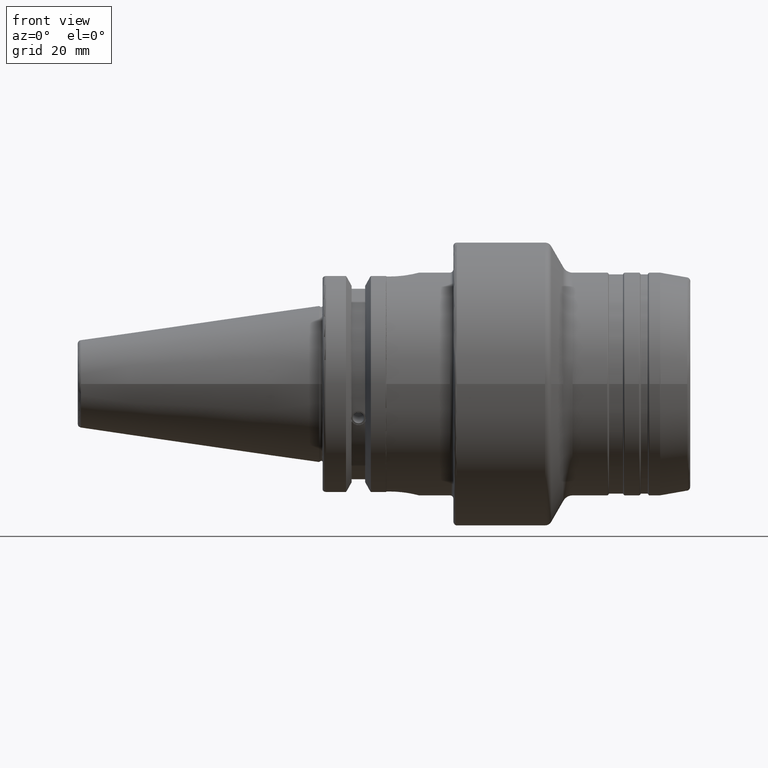
[diagram: clean part render]
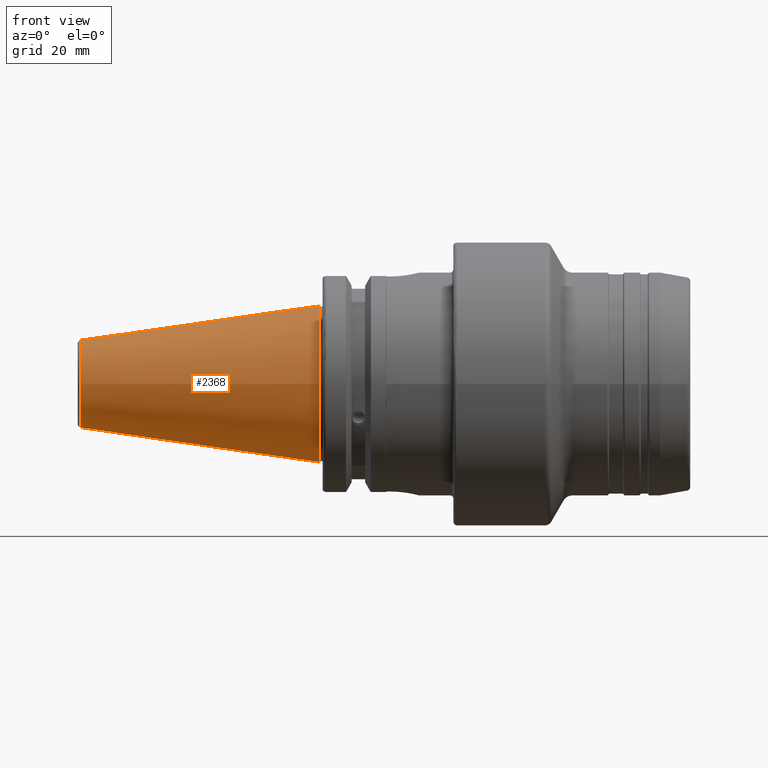
[diagram: same view with one face highlighted and labeled with its STEP entity id]
A machine part, front view. The second image highlights one B-rep face of the part: STEP entity #2368.
In plain terms, the highlighted conical surface has half-angle 8.297 deg.
Its self-contained STEP definition (entity closure, byte-faithful):
#283=FACE_OUTER_BOUND('',#414,.T.);
#414=EDGE_LOOP('',(#2078,#2079,#2080,#2081,#2082,#2083,#2084));
#537=LINE('',#4548,#646);
#646=VECTOR('',#3413,17.2484375);
#831=CIRCLE('',#2689,12.3966635780937);
#832=CIRCLE('',#2690,12.3966635780937);
#836=CIRCLE('',#2694,12.3966635780937);
#839=CIRCLE('',#2699,22.225);
#840=CIRCLE('',#2700,22.225);
#1098=VERTEX_POINT('',#4527);
#1099=VERTEX_POINT('',#4528);
#1100=VERTEX_POINT('',#4530);
#1105=VERTEX_POINT('',#4544);
#1106=VERTEX_POINT('',#4545);
#1447=EDGE_CURVE('',#1098,#1099,#831,.T.);
#1448=EDGE_CURVE('',#1099,#1100,#832,.T.);
#1452=EDGE_CURVE('',#1100,#1098,#836,.T.);
#1455=EDGE_CURVE('',#1105,#1106,#839,.T.);
#1456=EDGE_CURVE('',#1106,#1105,#840,.T.);
#1457=EDGE_CURVE('',#1106,#1099,#537,.T.);
#2078=ORIENTED_EDGE('',*,*,#1455,.F.);
#2079=ORIENTED_EDGE('',*,*,#1456,.F.);
#2080=ORIENTED_EDGE('',*,*,#1457,.T.);
#2081=ORIENTED_EDGE('',*,*,#1447,.F.);
#2082=ORIENTED_EDGE('',*,*,#1452,.F.);
#2083=ORIENTED_EDGE('',*,*,#1448,.F.);
#2084=ORIENTED_EDGE('',*,*,#1457,.F.);
#2273=CONICAL_SURFACE('',#2698,17.2484375,0.144812498238939);
#2368=ADVANCED_FACE('',(#283),#2273,.T.);
#2689=AXIS2_PLACEMENT_3D('',#4529,#3389,#3390);
#2690=AXIS2_PLACEMENT_3D('',#4531,#3391,#3392);
#2694=AXIS2_PLACEMENT_3D('',#4537,#3399,#3400);
#2698=AXIS2_PLACEMENT_3D('',#4543,#3407,#3408);
#2699=AXIS2_PLACEMENT_3D('',#4546,#3409,#3410);
#2700=AXIS2_PLACEMENT_3D('',#4547,#3411,#3412);
#3389=DIRECTION('center_axis',(-1.,0.,0.));
#3390=DIRECTION('ref_axis',(0.,-1.,3.06161699786838E-17));
#3391=DIRECTION('center_axis',(-1.,0.,0.));
#3392=DIRECTION('ref_axis',(0.,-1.,3.06161699786838E-17));
#3399=DIRECTION('center_axis',(-1.,0.,0.));
#3400=DIRECTION('ref_axis',(0.,-1.,3.06161699786838E-17));
#3407=DIRECTION('center_axis',(1.,0.,0.));
#3408=DIRECTION('ref_axis',(0.,1.,0.));
#3409=DIRECTION('center_axis',(1.,0.,0.));
#3410=DIRECTION('ref_axis',(0.,0.,-1.));
#3411=DIRECTION('center_axis',(1.,0.,0.));
#3412=DIRECTION('ref_axis',(0.,0.,-1.));
#3413=DIRECTION('',(-0.989532981063282,0.144306893071729,1.76724974695192E-17));
#4527=CARTESIAN_POINT('',(-67.3943068930717,12.3966635780937,-3.79538359275475E-15));
#4528=CARTESIAN_POINT('',(-67.3943068930718,-12.3966635780937,-1.5181534371019E-15));
#4529=CARTESIAN_POINT('Origin',(-67.3943068930717,0.,-1.89769179637738E-15));
#4530=CARTESIAN_POINT('',(-67.3943068930717,-1.5181534371019E-15,12.3966635780937));
#4531=CARTESIAN_POINT('Origin',(-67.3943068930717,0.,-1.89769179637738E-15));
#4537=CARTESIAN_POINT('Origin',(-67.3943068930717,0.,-1.89769179637738E-15));
#4543=CARTESIAN_POINT('Origin',(-34.125,0.,0.));
#4544=CARTESIAN_POINT('',(0.,22.225,0.));
#4545=CARTESIAN_POINT('',(0.,-22.225,-2.72177751110499E-15));
#4546=CARTESIAN_POINT('Origin',(0.,0.,0.));
#4547=CARTESIAN_POINT('Origin',(0.,0.,0.));
#4548=CARTESIAN_POINT('',(-34.125,-17.2484375,-2.11232437746682E-15));